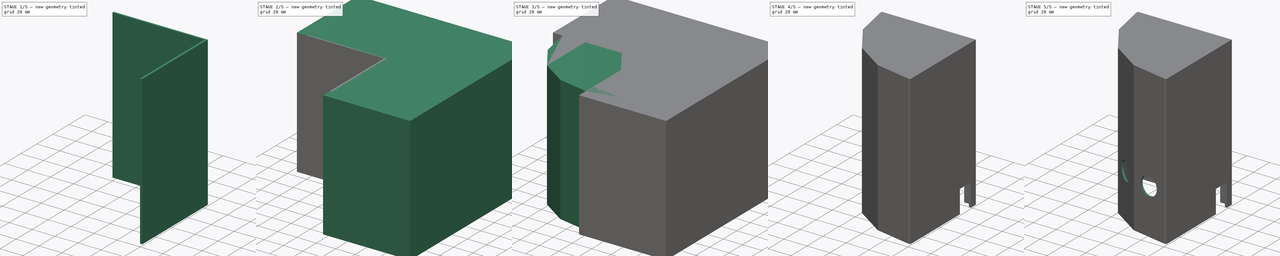
[diagram: build sequence overview — one tinted view per stage of 5, left to right]
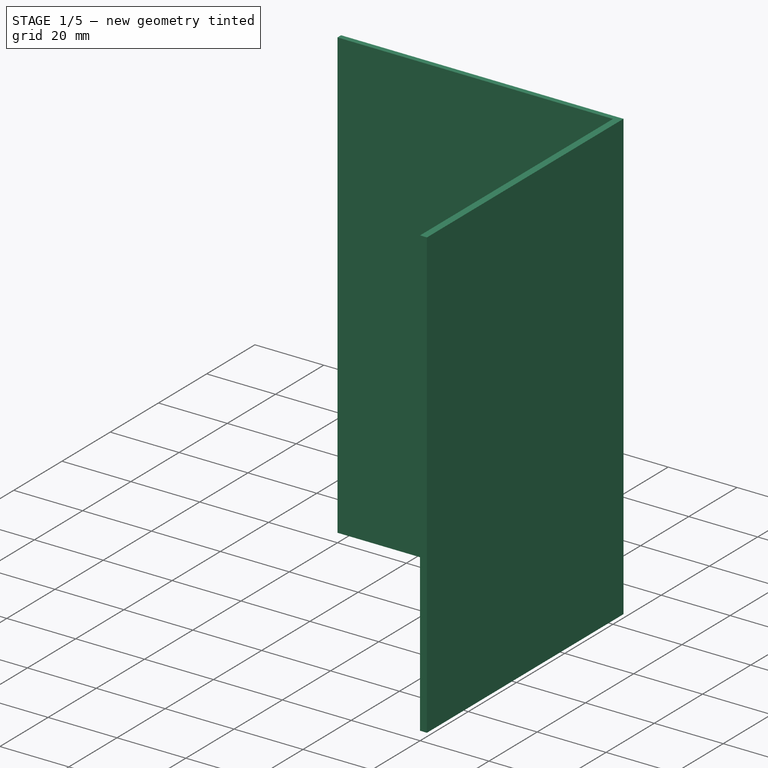
[diagram: stage 1 of 5 — iso view after this stage's code; geometry added in this stage tinted green]
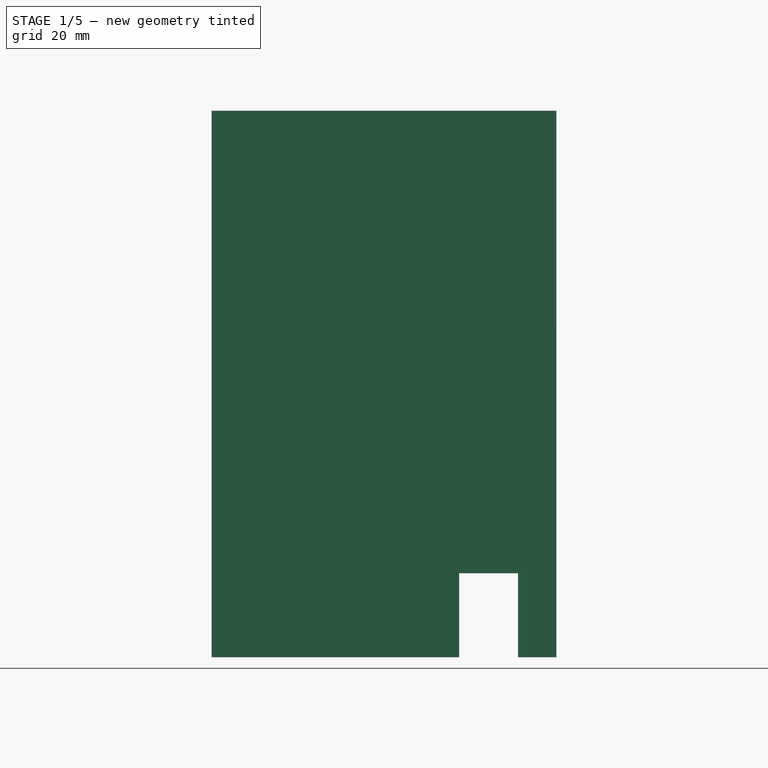
[diagram: stage 1 of 5 — front view after this stage's code; geometry added in this stage tinted green]
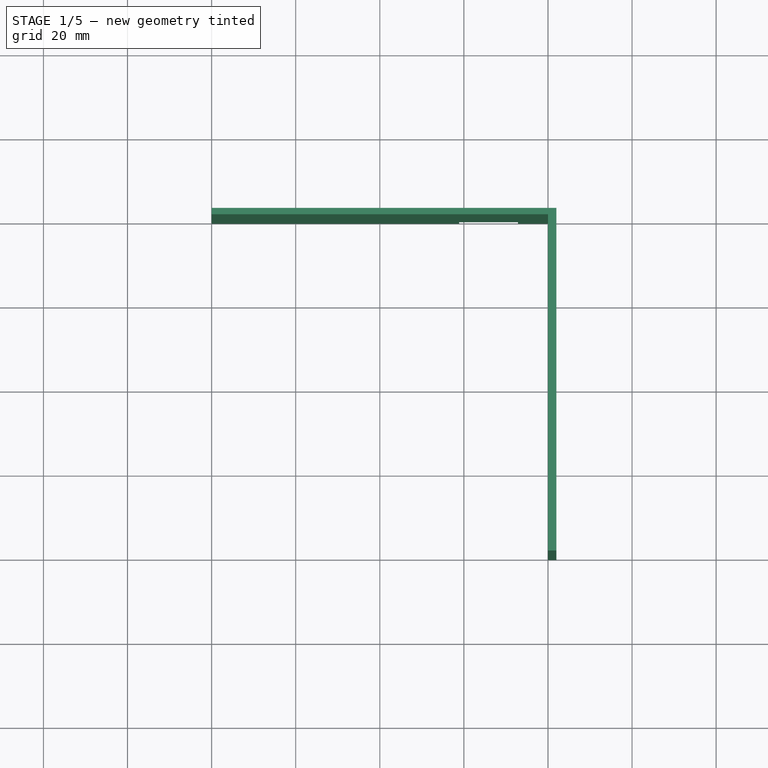
[diagram: stage 1 of 5 — top view after this stage's code; geometry added in this stage tinted green]
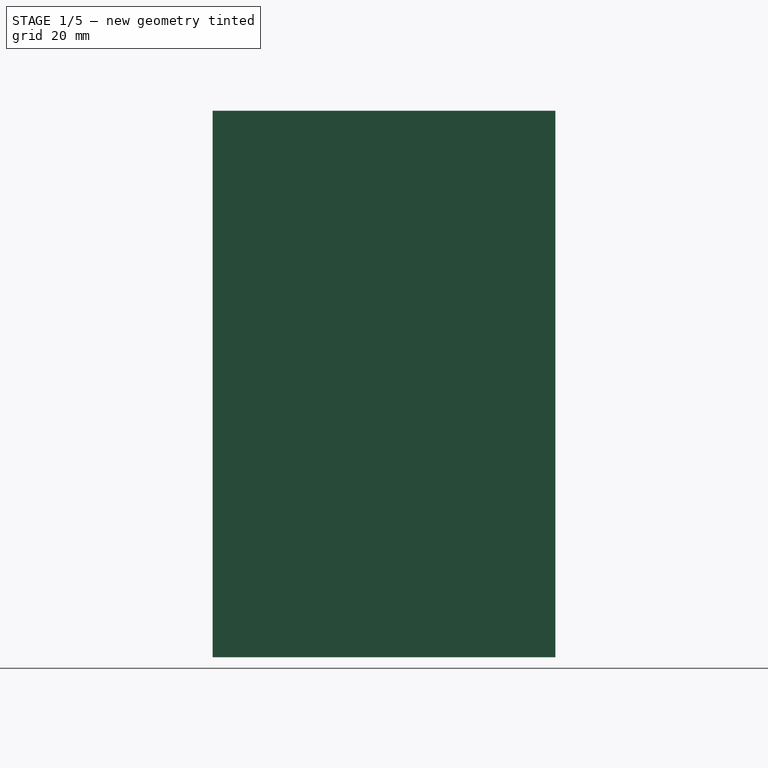
[diagram: stage 1 of 5 — right view after this stage's code; geometry added in this stage tinted green]
FCSTD DOCUMENT  (FreeCAD 0.14R3700 (Git))
Label: Baliza_80x1.5mm
License: CC-BY 3.0
LicenseURL: http://creativecommons.org/licenses/by/3.0/
objects: Sketcher::SketchObject×7, PartDesign::Pocket×6, Part::Box×4, Part::Cut×3, Part::Prism×2
note: 28 computed .brp shape members not serialized (recipe doc carries the construction recipe); baked Part::Feature solids carry a one-line shape summary decoded from their .brp

FEATURE [Part::Box] Box002  label="Cubo002"
  Height = 130
  Length = 80
  Placement = pos=(-80,0,0) rot=(0,0,1;0rad)
  Width = 1.5
FEATURE [Part::Box] Box003  label="Cubo003"
  Height = 130
  Length = 2
  Placement = pos=(0,-80,0) rot=(0,0,1;0rad)
  Width = 81.5
FEATURE [Sketcher::SketchObject] Sketch006
  Placement = pos=(-80,1.5,0) rot=(0,0.707107,0.707107;3.14159rad)
  Support = -> Box002 [Face4]
  sketch-geometry (4):
    g0: LineSegment StartX=-72.8796 StartY=20 StartZ=0 EndX=-58.8796 EndY=20 EndZ=0
    g1: LineSegment StartX=-58.8796 StartY=20 StartZ=0 EndX=-58.8796 EndY=0 EndZ=0
    g2: LineSegment StartX=-58.8796 StartY=0 StartZ=0 EndX=-72.8796 EndY=0 EndZ=0
    g3: LineSegment StartX=-72.8796 StartY=0 StartZ=0 EndX=-72.8796 EndY=20 EndZ=0
  constraints (11):
    c: Coincident(g0,g1)
    c: Coincident(g1,g2)
    c: Coincident(g2,g3)
    c: Coincident(g3,g0)
    c: Horizontal(g0)
    c: Horizontal(g2)
    c: Vertical(g1)
    c: Vertical(g3)
    c: PointOnObject(g1,g-1)
    c: DistanceX(g0) = 14
    c: DistanceY(g1) = -20
FEATURE [PartDesign::Pocket] Pocket005
  Length = 2
  Placement = pos=(-80,0,0) rot=(0,0,1;0rad)
  Sketch = -> Sketch006
  Type = 0
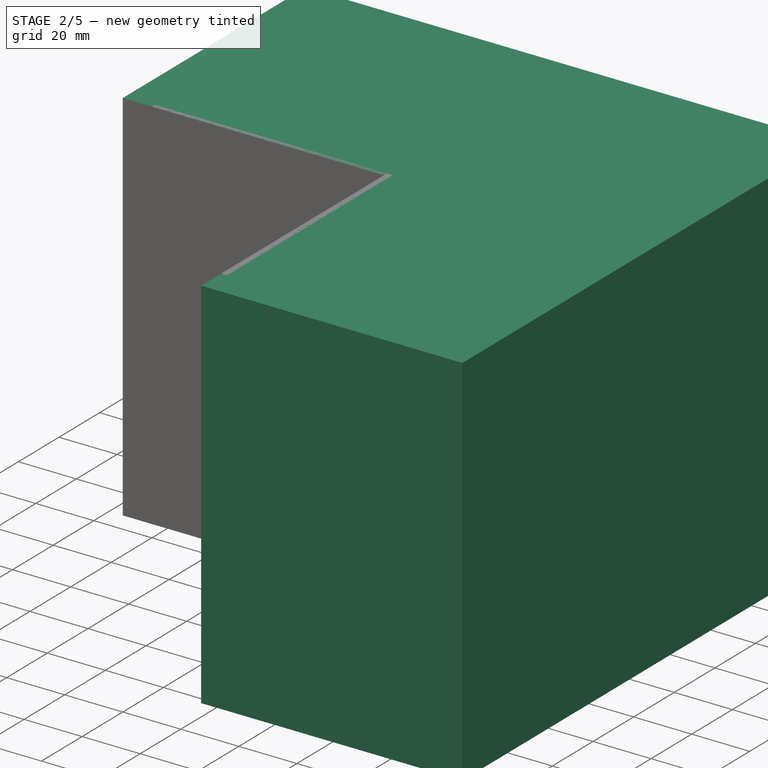
[diagram: stage 2 of 5 — iso view after this stage's code; geometry added in this stage tinted green]
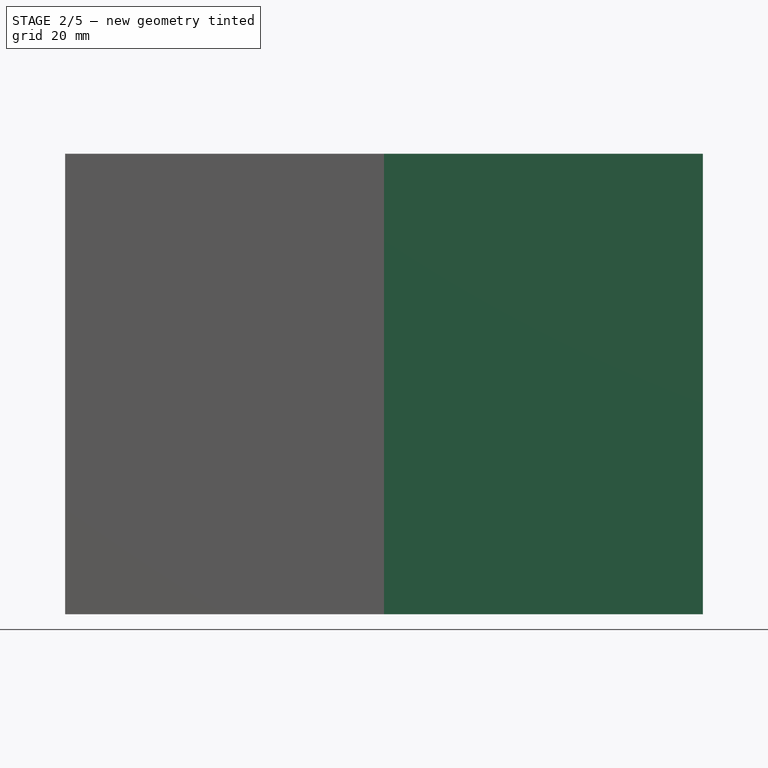
[diagram: stage 2 of 5 — front view after this stage's code; geometry added in this stage tinted green]
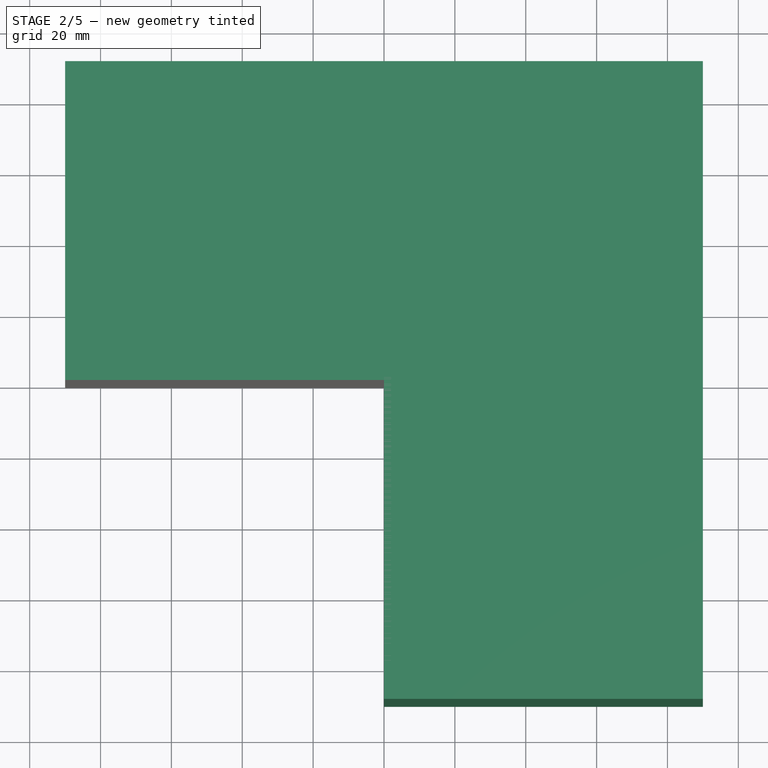
[diagram: stage 2 of 5 — top view after this stage's code; geometry added in this stage tinted green]
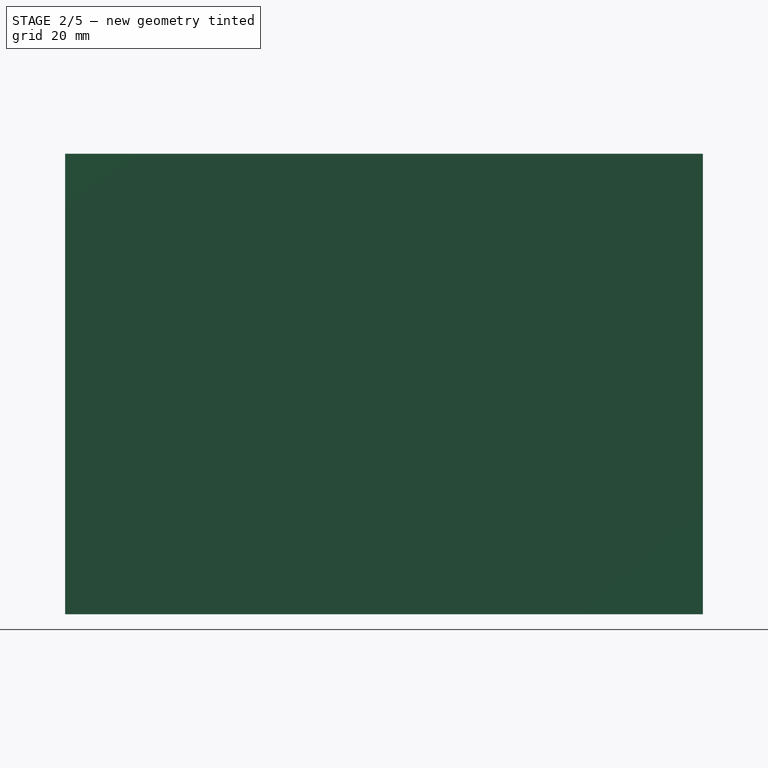
[diagram: stage 2 of 5 — right view after this stage's code; geometry added in this stage tinted green]
FEATURE [Part::Box] Box  label="Cubo"
  Height = 130
  Length = 90
  Placement = pos=(0,-90,0) rot=(0,0,1;0rad)
  Width = 180
FEATURE [Part::Box] Box001  label="Cubo001"
  Height = 130
  Length = 90
  Placement = pos=(-90,0,0) rot=(0,0,1;0rad)
  Width = 90
FEATURE [Sketcher::SketchObject] Sketch005
  Placement = pos=(2,-80,0) rot=(0.57735,0.57735,0.57735;2.0944rad)
  Support = -> Box003 [Face2]
  sketch-geometry (4):
    g0: LineSegment StartX=61.6361 StartY=20 StartZ=0 EndX=75.6361 EndY=20 EndZ=0
    g1: LineSegment StartX=75.6361 StartY=20 StartZ=0 EndX=75.6361 EndY=0 EndZ=0
    g2: LineSegment StartX=75.6361 StartY=0 StartZ=0 EndX=61.6361 EndY=0 EndZ=0
    g3: LineSegment StartX=61.6361 StartY=0 StartZ=0 EndX=61.6361 EndY=20 EndZ=0
  constraints (11):
    c: Coincident(g0,g1)
    c: Coincident(g1,g2)
    c: Coincident(g2,g3)
    c: Coincident(g3,g0)
    c: Horizontal(g0)
    c: Horizontal(g2)
    c: Vertical(g1)
    c: Vertical(g3)
    c: PointOnObject(g1,g-1)
    c: DistanceY(g1) = -20
    c: DistanceX(g0) = 14
FEATURE [PartDesign::Pocket] Pocket004
  Length = 3
  Placement = pos=(0,-80,0) rot=(0,0,1;0rad)
  Sketch = -> Sketch005
  Type = 0
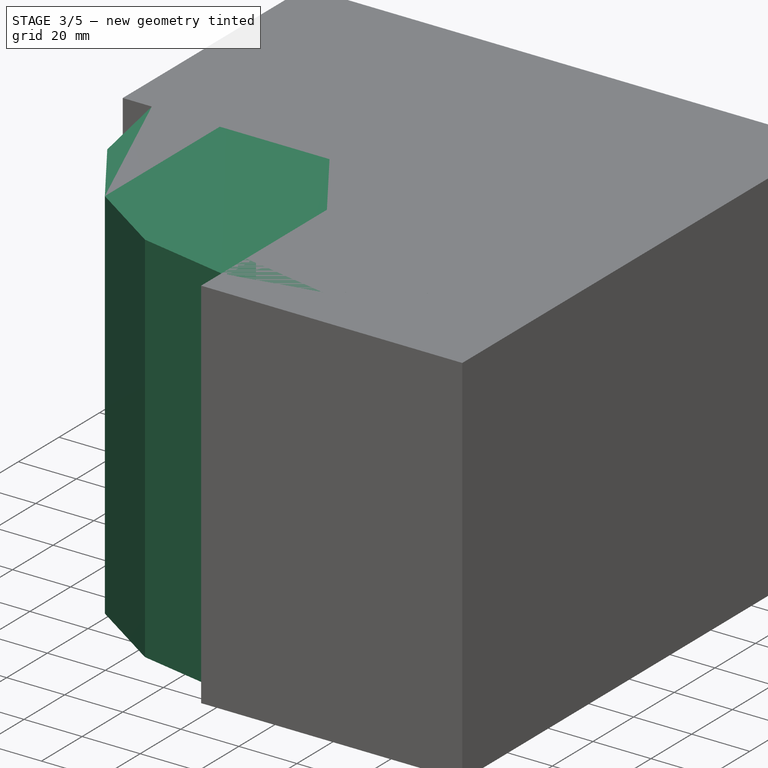
[diagram: stage 3 of 5 — iso view after this stage's code; geometry added in this stage tinted green]
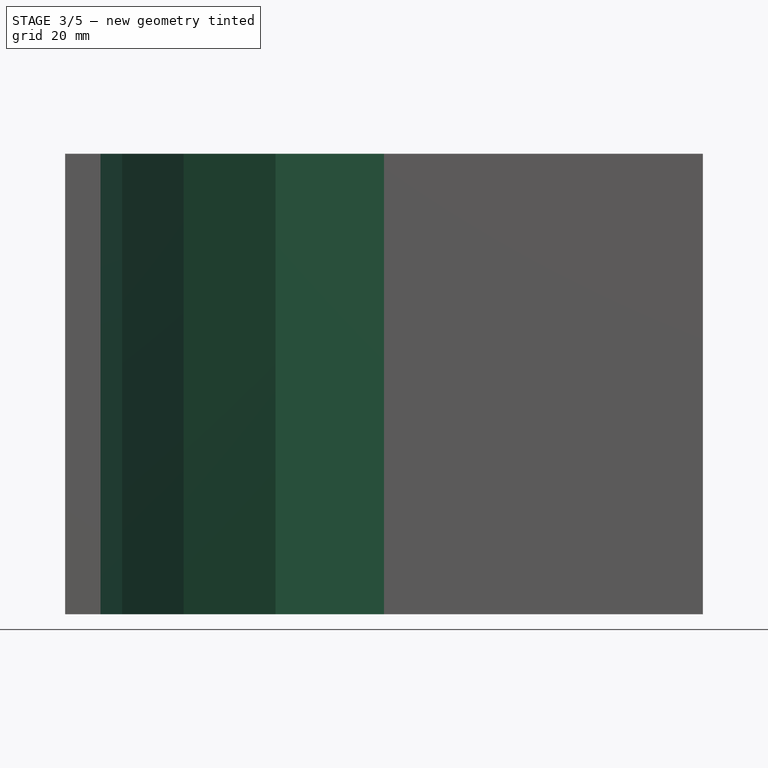
[diagram: stage 3 of 5 — front view after this stage's code; geometry added in this stage tinted green]
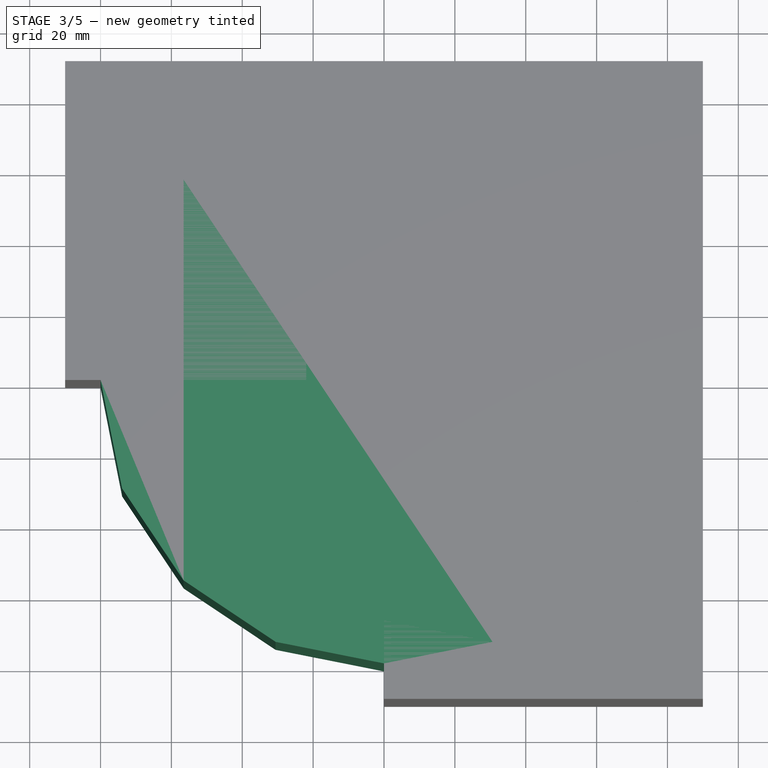
[diagram: stage 3 of 5 — top view after this stage's code; geometry added in this stage tinted green]
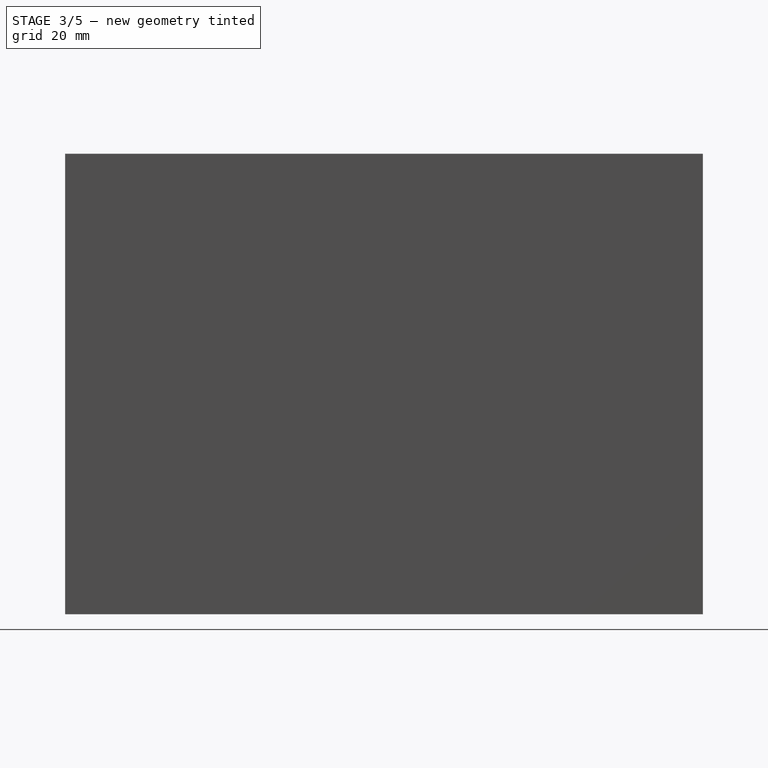
[diagram: stage 3 of 5 — right view after this stage's code; geometry added in this stage tinted green]
FEATURE [Part::Prism] Prism  label="Prisma"
  Circumradius = 80
  Height = 130
  Polygon = 16
FEATURE [Part::Prism] Prism001  label="Prisma001"
  Circumradius = 78.5
  Height = 128.5
  Polygon = 16
FEATURE [Part::Cut] Cut
  Base = -> Prism
  Tool = -> Prism001
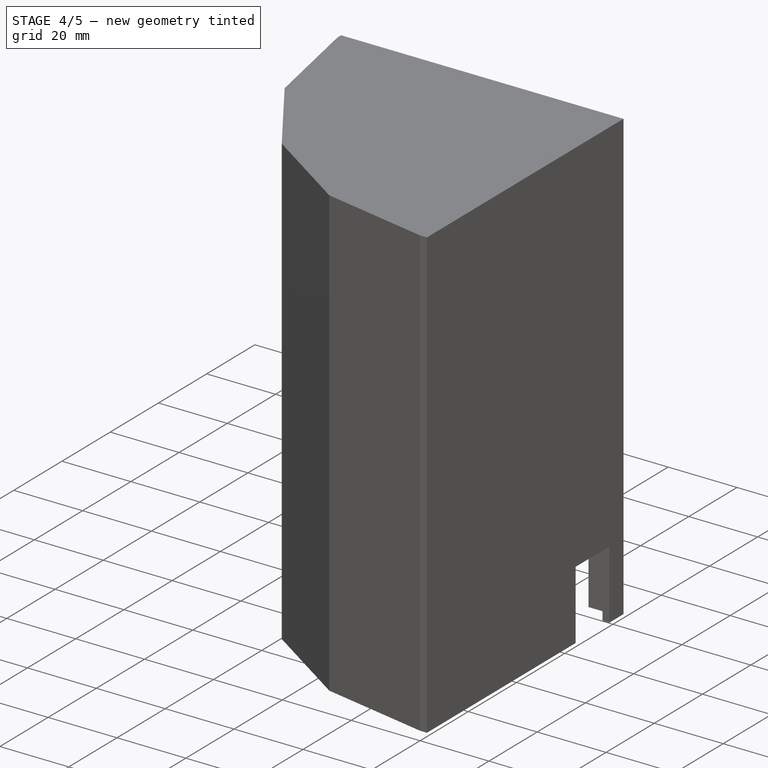
[diagram: stage 4 of 5 — iso view after this stage's code; geometry added in this stage tinted green]
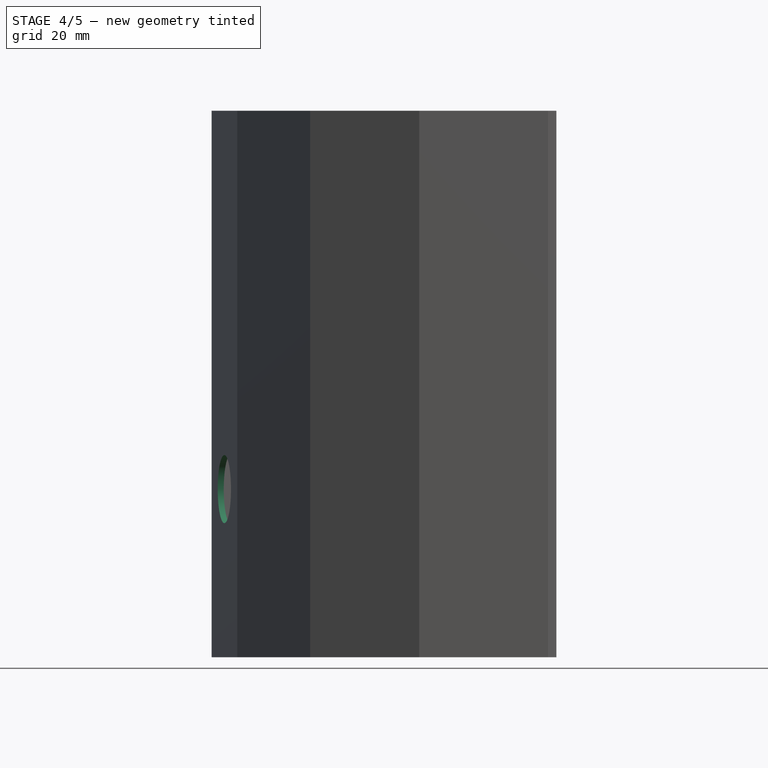
[diagram: stage 4 of 5 — front view after this stage's code; geometry added in this stage tinted green]
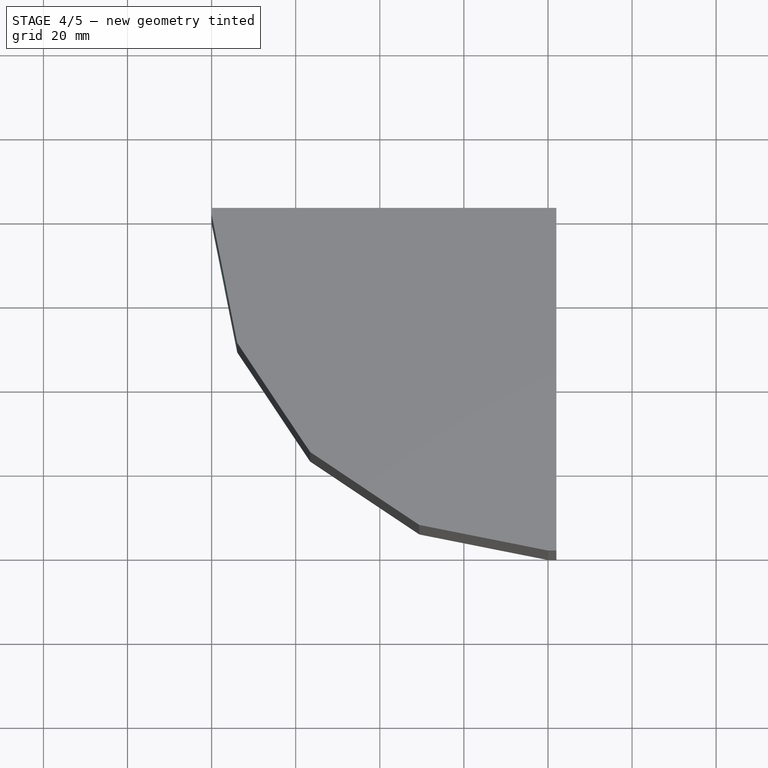
[diagram: stage 4 of 5 — top view after this stage's code; geometry added in this stage tinted green]
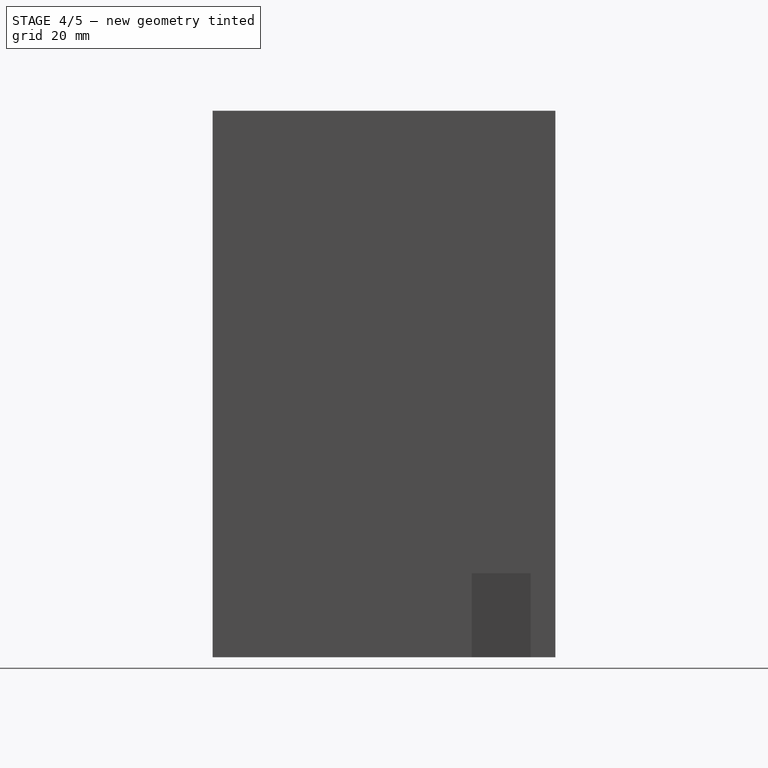
[diagram: stage 4 of 5 — right view after this stage's code; geometry added in this stage tinted green]
FEATURE [Part::Cut] Cut001
  Base = -> Cut
  Tool = -> Box
FEATURE [Part::Cut] Cut002
  Base = -> Cut001
  Tool = -> Box001
FEATURE [Sketcher::SketchObject] Sketch
  Placement = pos=(-15.3073,-76.9552,0) rot=(0.990438,-0.09755,-0.09755;1.5804rad)
  Support = -> Cut002 [Face7]
FEATURE [Sketcher::SketchObject] Sketch001
  ExternalGeometry = -> [Cut002]
  Placement = pos=(-76.9552,-15.3073,0) rot=(0.652741,-0.535691,-0.535691;1.98499rad)
  Support = -> Cut002 [Face2]
  sketch-geometry (1):
    g0: Circle CenterX=-0.087106 CenterY=40 CenterZ=0 NormalX=0 NormalY=0 NormalZ=1 Radius=8.1
  constraints (2):
    c: Distance(g0,g-3) = 90
    c: Radius(g0) = 8.1
FEATURE [PartDesign::Pocket] Pocket
  Length = 3
  Sketch = -> Sketch001
  Type = 0
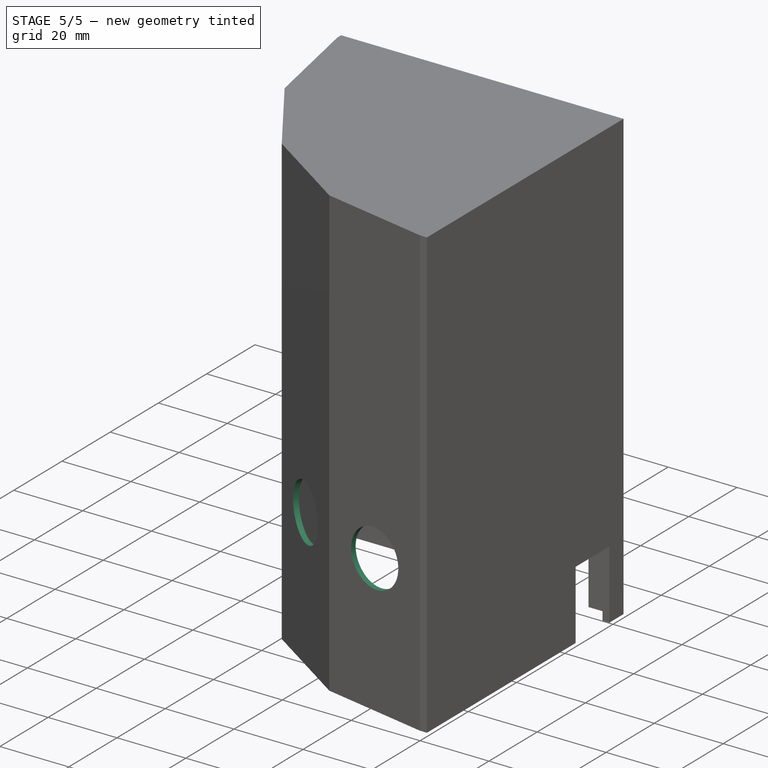
[diagram: stage 5 of 5 — iso view after this stage's code; geometry added in this stage tinted green]
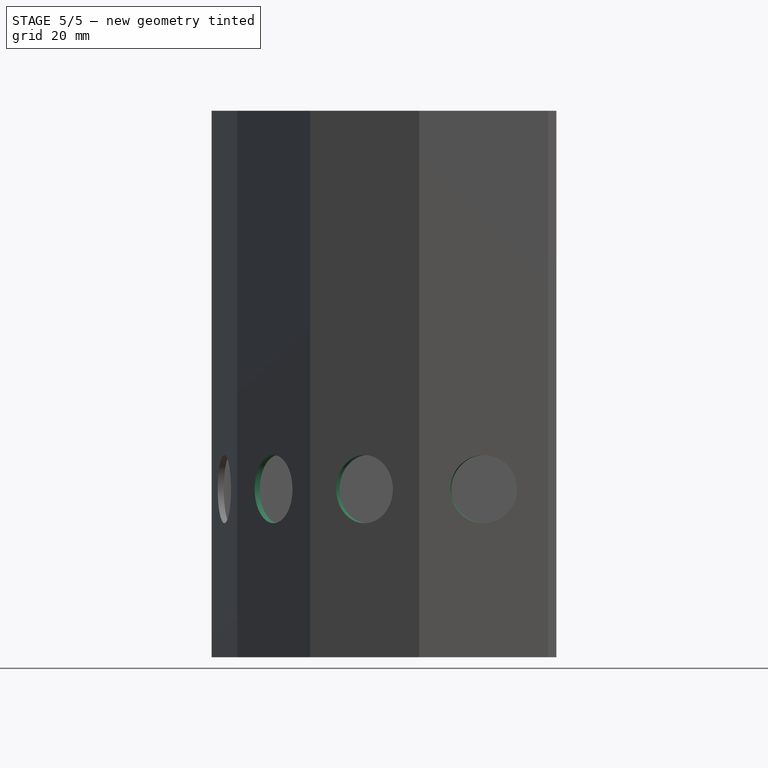
[diagram: stage 5 of 5 — front view after this stage's code; geometry added in this stage tinted green]
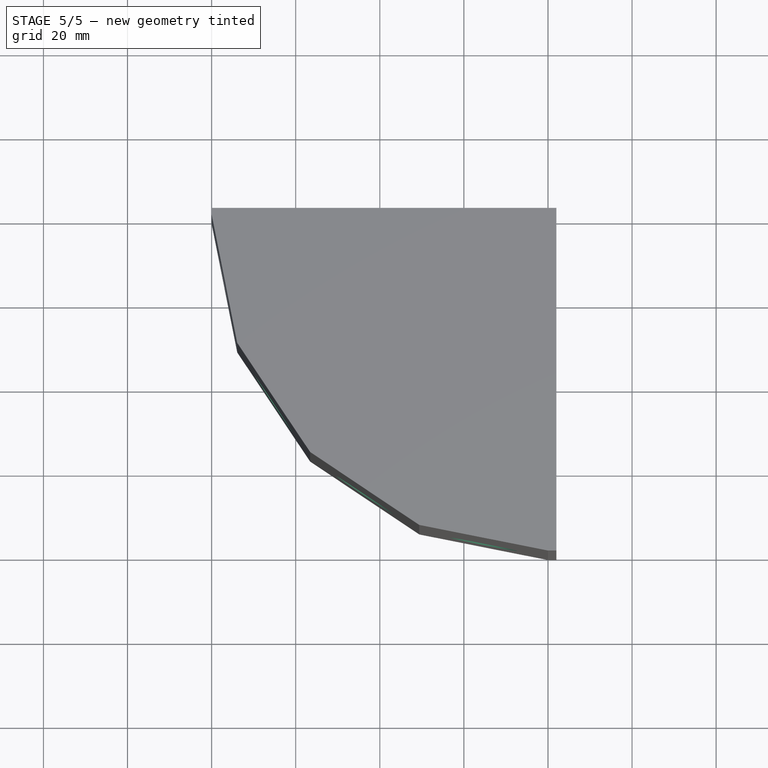
[diagram: stage 5 of 5 — top view after this stage's code; geometry added in this stage tinted green]
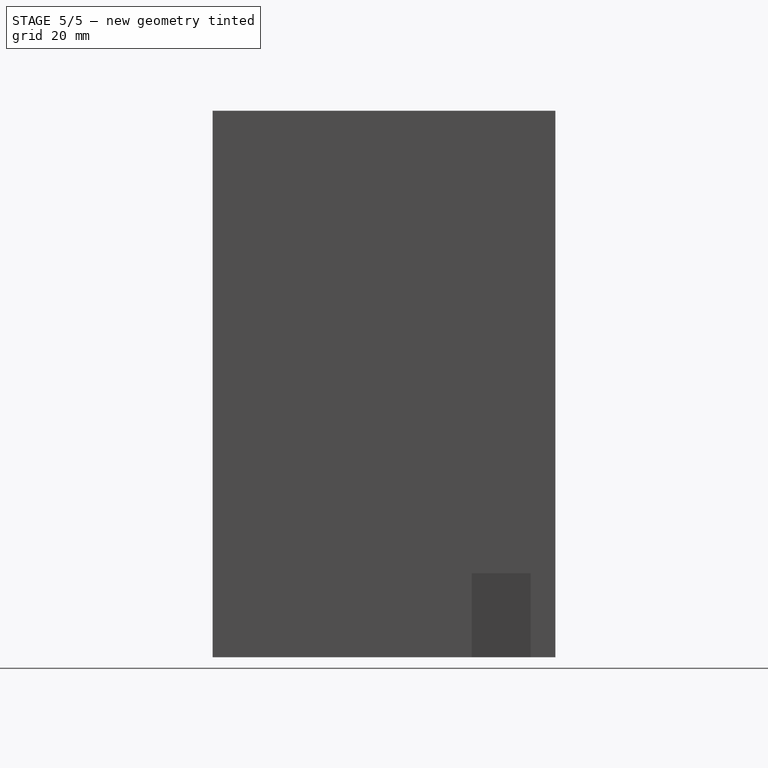
[diagram: stage 5 of 5 — right view after this stage's code; geometry added in this stage tinted green]
FEATURE [Sketcher::SketchObject] Sketch002
  Placement = pos=(-65.2395,-43.5916,0) rot=(0.79773,-0.426396,-0.426396;1.79488rad)
  Support = -> Pocket [Face1]
  sketch-geometry (1):
    g0: Circle CenterX=-0.050397 CenterY=40 CenterZ=0 NormalX=0 NormalY=0 NormalZ=1 Radius=8.1
  constraints (1):
    c: Radius(g0) = 8.1
FEATURE [PartDesign::Pocket] Pocket001
  Length = 3
  Sketch = -> Sketch002
  Type = 0
FEATURE [Sketcher::SketchObject] Sketch003
  Placement = pos=(-43.5916,-65.2395,0) rot=(0.919003,-0.278777,-0.278777;1.65516rad)
  Support = -> Pocket001 [Face10]
  sketch-geometry (1):
    g0: Circle CenterX=-0.05246 CenterY=40 CenterZ=0 NormalX=0 NormalY=0 NormalZ=1 Radius=8.1
  constraints (1):
    c: Radius(g0) = 8.1
FEATURE [PartDesign::Pocket] Pocket002
  Length = 3
  Sketch = -> Sketch003
  Type = 0
FEATURE [Sketcher::SketchObject] Sketch004
  Placement = pos=(-15.3073,-76.9552,0) rot=(0.990438,-0.09755,-0.09755;1.5804rad)
  Support = -> Pocket002 [Face11]
  sketch-geometry (1):
    g0: Circle CenterX=0.018064 CenterY=40 CenterZ=0 NormalX=0 NormalY=0 NormalZ=1 Radius=8.1
  constraints (1):
    c: Radius(g0) = 8.1
FEATURE [PartDesign::Pocket] Pocket003
  Length = 3
  Sketch = -> Sketch004
  Type = 0
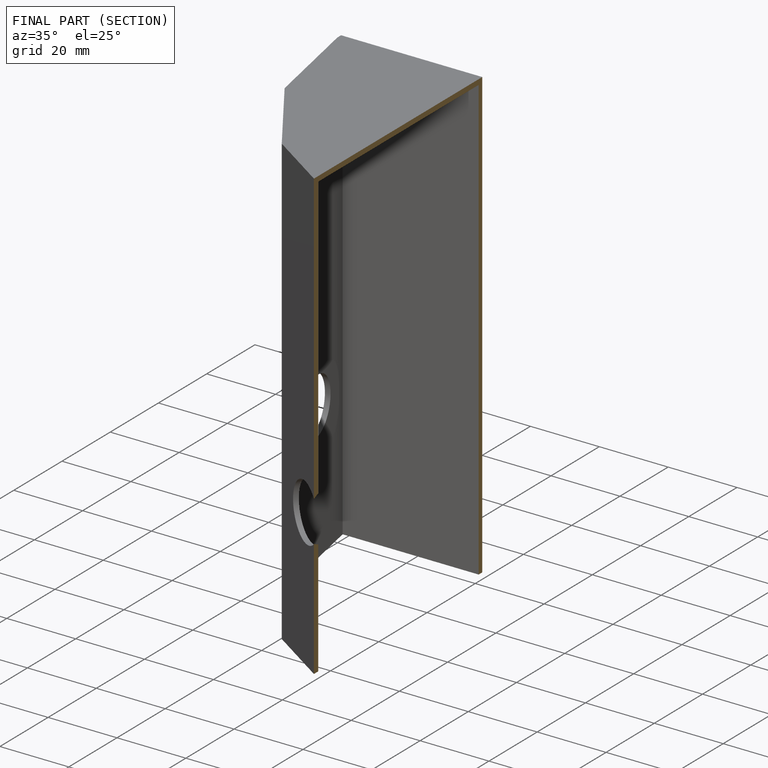
[diagram: finished part — half-section view (interior)]
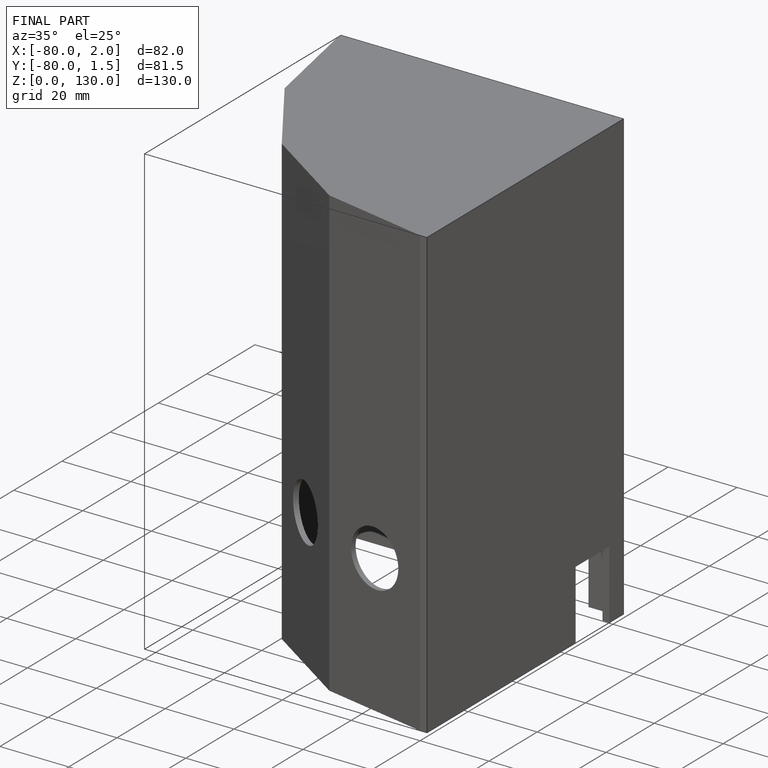
[diagram: finished part — iso view with bounding-box wireframe]
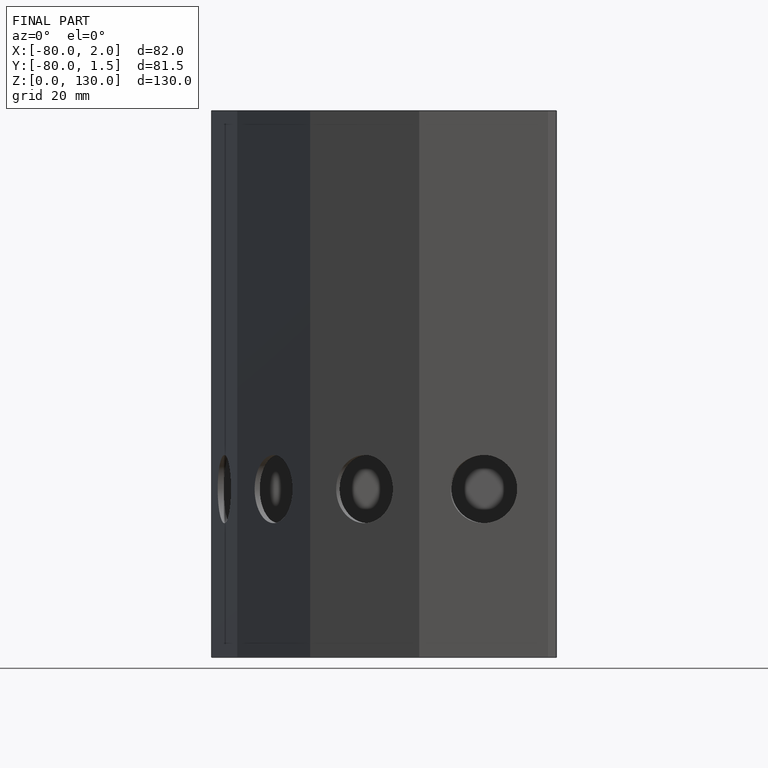
[diagram: finished part — front view with bounding-box wireframe]
